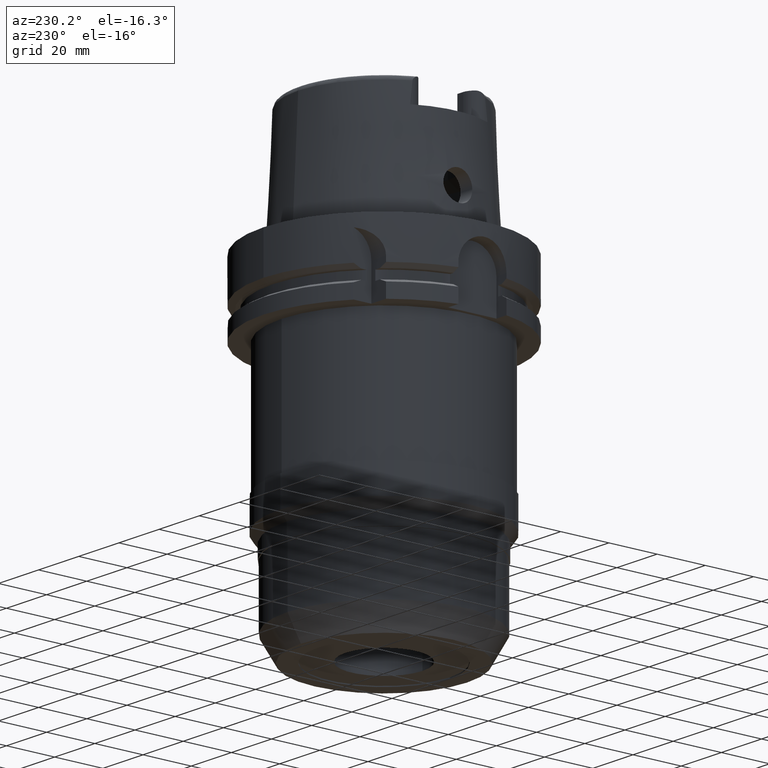
[diagram: clean part render]
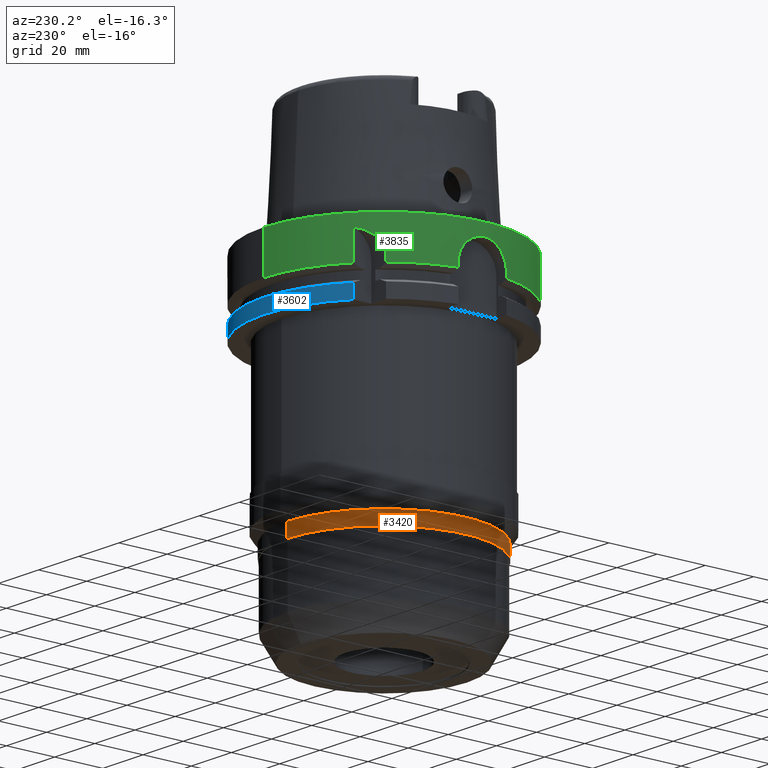
[diagram: same view with three faces highlighted in distinct colors, each labeled with its STEP entity id]
A machine part, auxiliary view with three faces highlighted in distinct colors.
Their STEP definitions:

[orange] entity #3420 — the highlighted cylindrical surface (partial cylindrical patch) has radius 40.35 mm, axis along (0, 0, 1).
#1097=CARTESIAN_POINT('',(0.E0,0.E0,-1.016E2));
#1098=DIRECTION('',(0.E0,0.E0,1.E0));
#1099=DIRECTION('',(0.E0,1.E0,0.E0));
#1100=AXIS2_PLACEMENT_3D('',#1097,#1098,#1099);
#1121=DIRECTION('',(0.E0,-2.988031265328E-13,-1.E0));
#1122=VECTOR('',#1121,5.683331222709E0);
#1123=CARTESIAN_POINT('',(0.E0,4.035E1,-9.591666877729E1));
#1124=LINE('',#1123,#1122);
#1128=DIRECTION('',(0.E0,2.988031265328E-13,-1.E0));
#1129=VECTOR('',#1128,5.683331222709E0);
#1130=CARTESIAN_POINT('',(0.E0,-4.035E1,-9.591666877729E1));
#1131=LINE('',#1130,#1129);
#1150=CARTESIAN_POINT('',(0.E0,0.E0,-9.591666877729E1));
#1151=DIRECTION('',(0.E0,0.E0,-1.E0));
#1152=DIRECTION('',(0.E0,-1.E0,0.E0));
#1153=AXIS2_PLACEMENT_3D('',#1150,#1151,#1152);
#2426=CARTESIAN_POINT('',(0.E0,-4.035E1,-1.016E2));
#2427=CARTESIAN_POINT('',(0.E0,4.035E1,-1.016E2));
#2428=VERTEX_POINT('',#2426);
#2429=VERTEX_POINT('',#2427);
#2430=CARTESIAN_POINT('',(0.E0,4.035E1,-9.591666877729E1));
#2431=VERTEX_POINT('',#2430);
#2432=CARTESIAN_POINT('',(0.E0,-4.035E1,-9.591666877729E1));
#2433=VERTEX_POINT('',#2432);
#3408=CARTESIAN_POINT('',(0.E0,0.E0,-1.4467E2));
#3409=DIRECTION('',(0.E0,0.E0,1.E0));
#3410=DIRECTION('',(0.E0,1.E0,0.E0));
#3411=AXIS2_PLACEMENT_3D('',#3408,#3409,#3410);
#3412=CYLINDRICAL_SURFACE('',#3411,4.035E1);
#3413=ORIENTED_EDGE('',*,*,#3398,.F.);
#3415=ORIENTED_EDGE('',*,*,#3414,.F.);
#3416=ORIENTED_EDGE('',*,*,#3401,.T.);
#3417=ORIENTED_EDGE('',*,*,#3384,.F.);
#3418=EDGE_LOOP('',(#3413,#3415,#3416,#3417));
#3419=FACE_OUTER_BOUND('',#3418,.F.);
#1101=CIRCLE('',#1100,4.035E1);
#1154=CIRCLE('',#1153,4.035E1);
#3384=EDGE_CURVE('',#2429,#2428,#1101,.T.);
#3398=EDGE_CURVE('',#2431,#2429,#1124,.T.);
#3401=EDGE_CURVE('',#2433,#2428,#1131,.T.);
#3414=EDGE_CURVE('',#2433,#2431,#1154,.T.);
#3420=ADVANCED_FACE('',(#3419),#3412,.T.);

[blue] entity #3602 — the highlighted cylindrical surface (partial cylindrical patch) has radius 50 mm, axis along (0, 0, 1).
#1286=CARTESIAN_POINT('',(0.E0,0.E0,-2.9E1));
#1287=DIRECTION('',(0.E0,0.E0,1.E0));
#1288=DIRECTION('',(9.754998718606E-1,2.2E-1,0.E0));
#1289=AXIS2_PLACEMENT_3D('',#1286,#1287,#1288);
#1294=CARTESIAN_POINT('',(0.E0,0.E0,-2.9E1));
#1295=DIRECTION('',(0.E0,0.E0,1.E0));
#1296=DIRECTION('',(0.E0,1.E0,0.E0));
#1297=AXIS2_PLACEMENT_3D('',#1294,#1295,#1296);
#1350=DIRECTION('',(6.188494047475E-7,5.020316378014E-7,-9.999999999997E-1));
#1351=VECTOR('',#1350,5.752391791881E0);
#1352=CARTESIAN_POINT('',(-3.150000355986E1,3.882975374283E1,
-2.324760820812E1));
#1353=LINE('',#1352,#1351);
#1357=DIRECTION('',(-8.399427413532E-14,-2.068976605539E-14,1.E0));
#1358=VECTOR('',#1357,5.752404735809E0);
#1359=CARTESIAN_POINT('',(4.877499359303E1,1.1E1,-2.9E1));
#1360=LINE('',#1359,#1358);
#1729=CARTESIAN_POINT('',(0.E0,0.E0,-2.324759526419E1));
#1730=DIRECTION('',(0.E0,0.E0,-1.E0));
#1731=DIRECTION('',(-6.3E-1,7.765951326142E-1,0.E0));
#1732=AXIS2_PLACEMENT_3D('',#1729,#1730,#1731);
#1737=CARTESIAN_POINT('',(0.E0,0.E0,-2.324759526419E1));
#1738=DIRECTION('',(0.E0,0.E0,-1.E0));
#1739=DIRECTION('',(0.E0,1.E0,0.E0));
#1740=AXIS2_PLACEMENT_3D('',#1737,#1738,#1739);
#2451=CARTESIAN_POINT('',(-3.15E1,3.882975663071E1,-2.9E1));
#2453=VERTEX_POINT('',#2451);
#2472=CARTESIAN_POINT('',(4.877499359303E1,1.1E1,-2.9E1));
#2473=VERTEX_POINT('',#2472);
#2474=CARTESIAN_POINT('',(-6.019535474874E-14,5.E1,-2.9E1));
#2475=VERTEX_POINT('',#2474);
#2476=CARTESIAN_POINT('',(-3.150000355986E1,3.882975374283E1,
-2.324760820812E1));
#2477=VERTEX_POINT('',#2476);
#2496=CARTESIAN_POINT('',(4.877499359303E1,1.1E1,-2.324759526419E1));
#2497=VERTEX_POINT('',#2496);
#2498=CARTESIAN_POINT('',(0.E0,5.E1,-2.324759526419E1));
#2499=VERTEX_POINT('',#2498);
#3586=CARTESIAN_POINT('',(0.E0,0.E0,-1.4467E2));
#3587=DIRECTION('',(0.E0,0.E0,1.E0));
#3588=DIRECTION('',(0.E0,1.E0,0.E0));
#3589=AXIS2_PLACEMENT_3D('',#3586,#3587,#3588);
#3590=CYLINDRICAL_SURFACE('',#3589,5.E1);
#3591=ORIENTED_EDGE('',*,*,#3565,.T.);
#3592=ORIENTED_EDGE('',*,*,#3550,.F.);
#3593=ORIENTED_EDGE('',*,*,#3548,.F.);
#3595=ORIENTED_EDGE('',*,*,#3594,.T.);
#3597=ORIENTED_EDGE('',*,*,#3596,.F.);
#3599=ORIENTED_EDGE('',*,*,#3598,.F.);
#3600=EDGE_LOOP('',(#3591,#3592,#3593,#3595,#3597,#3599));
#3601=FACE_OUTER_BOUND('',#3600,.F.);
#1290=CIRCLE('',#1289,5.E1);
#1298=CIRCLE('',#1297,5.E1);
#1733=CIRCLE('',#1732,5.E1);
#1741=CIRCLE('',#1740,5.E1);
#3548=EDGE_CURVE('',#2473,#2475,#1290,.T.);
#3550=EDGE_CURVE('',#2475,#2453,#1298,.T.);
#3565=EDGE_CURVE('',#2477,#2453,#1353,.T.);
#3594=EDGE_CURVE('',#2473,#2497,#1360,.T.);
#3596=EDGE_CURVE('',#2499,#2497,#1741,.T.);
#3598=EDGE_CURVE('',#2477,#2499,#1733,.T.);
#3602=ADVANCED_FACE('',(#3601),#3590,.T.);

[green] entity #3835 — the highlighted cylindrical surface (partial cylindrical patch) has radius 50 mm, axis along (0, 0, 1).
#1337=CARTESIAN_POINT('',(-3.150000355959E1,3.882975374305E1,
-1.675239179145E1));
#1522=CARTESIAN_POINT('',(-3.882975730068E1,3.149999917413E1,
-1.675240773890E1));
#1546=DIRECTION('',(-3.028823767049E-7,-2.457085509676E-7,-9.999999999999E-1));
#1547=VECTOR('',#1546,1.175239179145E1);
#1548=CARTESIAN_POINT('',(-3.15E1,3.882975663071E1,-5.000000000003E0));
#1549=LINE('',#1548,#1547);
#1553=DIRECTION('',(0.E0,2.969006079282E-14,-1.E0));
#1554=VECTOR('',#1553,1.675240473581E1);
#1555=CARTESIAN_POINT('',(0.E0,-5.E1,3.789561257387E-14));
#1556=LINE('',#1555,#1554);
#1560=DIRECTION('',(3.933032361779E-13,-2.534170336198E-14,1.E0));
#1561=VECTOR('',#1560,1.752404735809E0);
#1562=CARTESIAN_POINT('',(-4.898979485566E1,-1.E1,-1.675240473581E1));
#1563=LINE('',#1562,#1561);
#1567=DIRECTION('',(-4.014125812538E-13,-2.635537149646E-14,-1.E0));
#1568=VECTOR('',#1567,1.752404735809E0);
#1569=CARTESIAN_POINT('',(-4.898979485566E1,1.E1,-1.5E1));
#1570=LINE('',#1569,#1568);
#1574=DIRECTION('',(3.166955095345E-7,3.903884141555E-7,9.999999999999E-1));
#1575=VECTOR('',#1574,2.115509879686E0);
#1576=CARTESIAN_POINT('',(-3.882975730068E1,3.149999917413E1,
-1.675240773890E1));
#1577=LINE('',#1576,#1575);
#1581=CARTESIAN_POINT('',(-3.882975663071E1,3.15E1,-1.463689785921E1));
#1582=CARTESIAN_POINT('',(-3.882975663071E1,3.15E1,-1.433064602166E1));
#1583=CARTESIAN_POINT('',(-3.880705418828E1,3.152801630438E1,
-1.372017295376E1));
#1584=CARTESIAN_POINT('',(-3.870428889440E1,3.165427411822E1,
-1.280789810469E1));
#1585=CARTESIAN_POINT('',(-3.853135143154E1,3.186487486840E1,
-1.190702891268E1));
#1586=CARTESIAN_POINT('',(-3.828481123854E1,3.216112068734E1,
-1.102040564806E1));
#1587=CARTESIAN_POINT('',(-3.796154873298E1,3.254265073284E1,
-1.015735259961E1));
#1588=CARTESIAN_POINT('',(-3.755549894552E1,3.301119380622E1,
-9.321664413785E0));
#1589=CARTESIAN_POINT('',(-3.705885456051E1,3.356872877558E1,
-8.519828368113E0));
#1590=CARTESIAN_POINT('',(-3.646394733539E1,3.421519430285E1,
-7.761524897258E0));
#1591=CARTESIAN_POINT('',(-3.575809784573E1,3.495362870646E1,
-7.053892955705E0));
#1592=CARTESIAN_POINT('',(-3.493062095982E1,3.578229949616E1,
-6.409707439633E0));
#1593=CARTESIAN_POINT('',(-3.396221532159E1,3.670477719248E1,
-5.838584790316E0));
#1594=CARTESIAN_POINT('',(-3.283745333873E1,3.771686955717E1,
-5.356687683873E0));
#1595=CARTESIAN_POINT('',(-3.196702686841E1,3.845088878215E1,
-5.104978736442E0));
#1596=CARTESIAN_POINT('',(-3.15E1,3.882975663071E1,-5.000000000003E0));
#1619=CARTESIAN_POINT('',(0.E0,0.E0,-1.675240473581E1));
#1620=DIRECTION('',(0.E0,0.E0,1.E0));
#1621=DIRECTION('',(0.E0,1.E0,0.E0));
#1622=AXIS2_PLACEMENT_3D('',#1619,#1620,#1621);
#1776=DIRECTION('',(0.E0,-2.969006079282E-14,-1.E0));
#1777=VECTOR('',#1776,1.675240473581E1);
#1778=CARTESIAN_POINT('',(0.E0,5.E1,3.789561257387E-14));
#1779=LINE('',#1778,#1777);
#1850=CARTESIAN_POINT('',(0.E0,0.E0,-1.675240473581E1));
#1851=DIRECTION('',(0.E0,0.E0,1.E0));
#1852=DIRECTION('',(-9.797958971133E-1,-2.E-1,0.E0));
#1853=AXIS2_PLACEMENT_3D('',#1850,#1851,#1852);
#2004=CARTESIAN_POINT('',(0.E0,0.E0,5.684341886081E-14));
#2005=DIRECTION('',(0.E0,0.E0,-1.E0));
#2006=DIRECTION('',(0.E0,-1.E0,0.E0));
#2007=AXIS2_PLACEMENT_3D('',#2004,#2005,#2006);
#2036=CARTESIAN_POINT('',(-4.898979485566E1,1.E1,-1.5E1));
#2037=CARTESIAN_POINT('',(-4.898979485566E1,1.E1,-1.426108339054E1));
#2038=CARTESIAN_POINT('',(-4.902380397178E1,9.835573181094E0,
-1.277773796762E1));
#2039=CARTESIAN_POINT('',(-4.916882506048E1,9.096390976148E0,
-1.064602762518E1));
#2040=CARTESIAN_POINT('',(-4.938004913442E1,7.892536922877E0,
-8.720777334134E0));
#2041=CARTESIAN_POINT('',(-4.961472990510E1,6.281193322608E0,
-7.108977901554E0));
#2042=CARTESIAN_POINT('',(-4.982397989539E1,4.355986646181E0,
-5.904662998032E0));
#2043=CARTESIAN_POINT('',(-4.996651786455E1,2.226278022806E0,
-5.165424488103E0));
#2044=CARTESIAN_POINT('',(-5.001677347920E1,-1.478587466238E-3,
-4.917124513237E0));
#2045=CARTESIAN_POINT('',(-4.996638810610E1,-2.229127438262E0,
-5.166078098978E0));
#2046=CARTESIAN_POINT('',(-4.982375143674E1,-4.358568224988E0,
-5.905888858995E0));
#2047=CARTESIAN_POINT('',(-4.961443094386E1,-6.283534592862E0,
-7.110860296476E0));
#2048=CARTESIAN_POINT('',(-4.937976574419E1,-7.894254858082E0,
-8.722905111691E0));
#2049=CARTESIAN_POINT('',(-4.916856876748E1,-9.097827969051E0,
-1.064902048529E1));
#2050=CARTESIAN_POINT('',(-4.902370122882E1,-9.835971298666E0,
-1.278006468368E1));
#2051=CARTESIAN_POINT('',(-4.898979485566E1,-1.E1,-1.426200339765E1));
#2052=CARTESIAN_POINT('',(-4.898979485566E1,-1.E1,-1.5E1));
#2071=CARTESIAN_POINT('',(0.E0,0.E0,-1.675240473581E1));
#2072=DIRECTION('',(0.E0,0.E0,1.E0));
#2073=DIRECTION('',(-7.765951326142E-1,6.3E-1,0.E0));
#2074=AXIS2_PLACEMENT_3D('',#2071,#2072,#2073);
#2079=CARTESIAN_POINT('',(-4.898979485566E1,1.E1,-1.675240473581E1));
#2485=VERTEX_POINT('',#1337);
#2486=CARTESIAN_POINT('',(-3.15E1,3.882975663071E1,-5.000000000003E0));
#2487=VERTEX_POINT('',#2486);
#2506=CARTESIAN_POINT('',(-4.898979485566E1,-1.E1,-1.5E1));
#2507=VERTEX_POINT('',#2506);
#2508=CARTESIAN_POINT('',(-4.898979485566E1,-1.E1,-1.675240473581E1));
#2509=VERTEX_POINT('',#2508);
#2528=VERTEX_POINT('',#2079);
#2529=CARTESIAN_POINT('',(-4.898979485566E1,1.E1,-1.5E1));
#2530=VERTEX_POINT('',#2529);
#2569=CARTESIAN_POINT('',(0.E0,-5.E1,-1.675240473581E1));
#2570=VERTEX_POINT('',#2569);
#2574=CARTESIAN_POINT('',(0.E0,5.E1,-1.675240473581E1));
#2575=VERTEX_POINT('',#2574);
#2576=VERTEX_POINT('',#1522);
#2577=CARTESIAN_POINT('',(0.E0,5.E1,3.789561257387E-14));
#2578=VERTEX_POINT('',#2577);
#2579=CARTESIAN_POINT('',(0.E0,-5.E1,5.684341886081E-14));
#2580=VERTEX_POINT('',#2579);
#2581=CARTESIAN_POINT('',(-3.882975663071E1,3.15E1,-1.463689785921E1));
#2582=VERTEX_POINT('',#2581);
#3809=CARTESIAN_POINT('',(0.E0,0.E0,-1.4467E2));
#3810=DIRECTION('',(0.E0,0.E0,1.E0));
#3811=DIRECTION('',(0.E0,1.E0,0.E0));
#3812=AXIS2_PLACEMENT_3D('',#3809,#3810,#3811);
#3813=CYLINDRICAL_SURFACE('',#3812,5.E1);
#3814=ORIENTED_EDGE('',*,*,#3577,.T.);
#3816=ORIENTED_EDGE('',*,*,#3815,.F.);
#3818=ORIENTED_EDGE('',*,*,#3817,.F.);
#3820=ORIENTED_EDGE('',*,*,#3819,.F.);
#3822=ORIENTED_EDGE('',*,*,#3821,.T.);
#3824=ORIENTED_EDGE('',*,*,#3823,.F.);
#3825=ORIENTED_EDGE('',*,*,#3700,.T.);
#3827=ORIENTED_EDGE('',*,*,#3826,.F.);
#3828=ORIENTED_EDGE('',*,*,#3750,.T.);
#3830=ORIENTED_EDGE('',*,*,#3829,.F.);
#3831=ORIENTED_EDGE('',*,*,#3781,.T.);
#3832=ORIENTED_EDGE('',*,*,#3802,.T.);
#3833=EDGE_LOOP('',(#3814,#3816,#3818,#3820,#3822,#3824,#3825,#3827,#3828,#3830,
#3831,#3832));
#3834=FACE_OUTER_BOUND('',#3833,.F.);
#1597=B_SPLINE_CURVE_WITH_KNOTS('',3,(#1581,#1582,#1583,#1584,#1585,#1586,#1587,
#1588,#1589,#1590,#1591,#1592,#1593,#1594,#1595,#1596),.UNSPECIFIED.,.F.,.F.,(4,
1,1,1,1,1,1,1,1,1,1,1,1,4),(0.E0,7.692307692308E-2,1.538461538462E-1,
2.307692307692E-1,3.076923076923E-1,3.846153846154E-1,4.615384615385E-1,
5.384615384615E-1,6.153846153846E-1,6.923076923077E-1,7.692307692308E-1,
8.461538461538E-1,9.230769230769E-1,1.E0),.UNSPECIFIED.);
#1623=CIRCLE('',#1622,5.E1);
#1854=CIRCLE('',#1853,5.E1);
#2008=CIRCLE('',#2007,5.E1);
#2053=B_SPLINE_CURVE_WITH_KNOTS('',3,(#2036,#2037,#2038,#2039,#2040,#2041,#2042,
#2043,#2044,#2045,#2046,#2047,#2048,#2049,#2050,#2051,#2052),.UNSPECIFIED.,.F.,
.F.,(4,1,1,1,1,1,1,1,1,1,1,1,1,1,4),(0.E0,7.142857142857E-2,1.428571428571E-1,
2.142857142857E-1,2.857142857143E-1,3.571428571429E-1,4.285714285714E-1,5.E-1,
5.714285714286E-1,6.428571428571E-1,7.142857142857E-1,7.857142857143E-1,
8.571428571429E-1,9.285714285714E-1,1.E0),.UNSPECIFIED.);
#2075=CIRCLE('',#2074,5.E1);
#3577=EDGE_CURVE('',#2487,#2485,#1549,.T.);
#3700=EDGE_CURVE('',#2509,#2507,#1563,.T.);
#3750=EDGE_CURVE('',#2530,#2528,#1570,.T.);
#3781=EDGE_CURVE('',#2576,#2582,#1577,.T.);
#3802=EDGE_CURVE('',#2582,#2487,#1597,.T.);
#3815=EDGE_CURVE('',#2575,#2485,#1623,.T.);
#3817=EDGE_CURVE('',#2578,#2575,#1779,.T.);
#3819=EDGE_CURVE('',#2580,#2578,#2008,.T.);
#3821=EDGE_CURVE('',#2580,#2570,#1556,.T.);
#3823=EDGE_CURVE('',#2509,#2570,#1854,.T.);
#3826=EDGE_CURVE('',#2530,#2507,#2053,.T.);
#3829=EDGE_CURVE('',#2576,#2528,#2075,.T.);
#3835=ADVANCED_FACE('',(#3834),#3813,.T.);